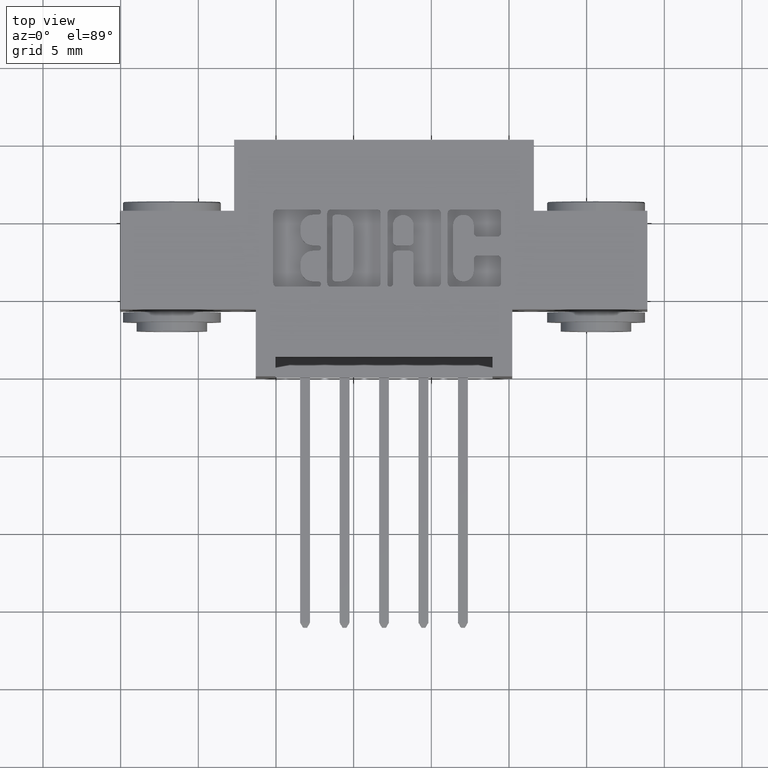
[diagram: clean part render]
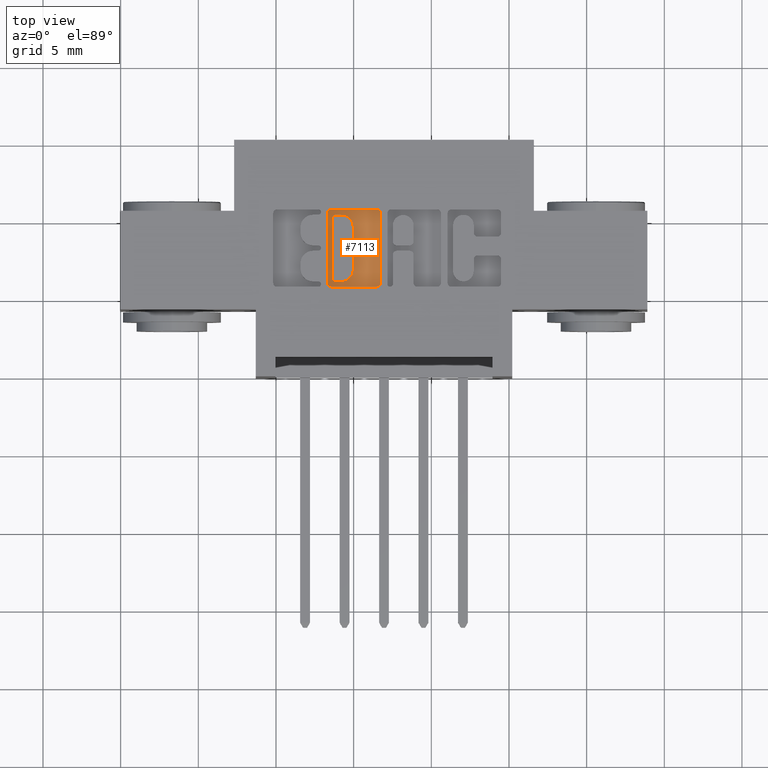
[diagram: same view with one face highlighted and labeled with its STEP entity id]
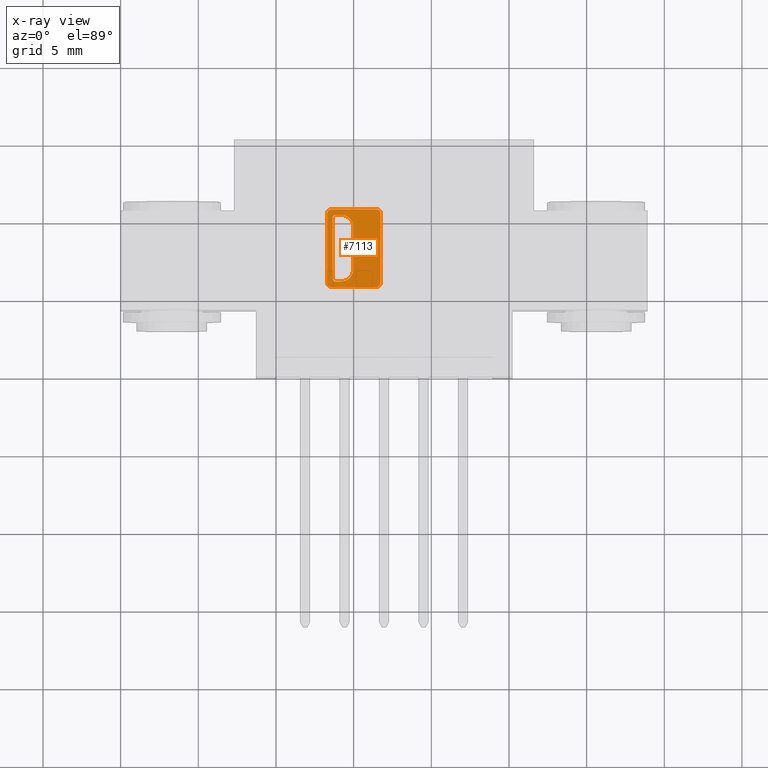
[diagram: x-ray of the same camera — body ghosted, the highlighted face saturated]
A machine part, top view. The second image highlights one B-rep face of the part: STEP entity #7113.
The next image is the same camera in x-ray: the body ghosted, the highlighted face saturated — about 0% of this face is hidden behind the body in this view.
In plain terms, the highlighted planar face has unit normal (0, 0, 1).
Its self-contained STEP definition (entity closure, byte-faithful):
#9 = DIRECTION ( 'NONE',  ( 1.000000000000000000, 0.0000000000000000000, 0.0000000000000000000 ) ) ;
#76 = CARTESIAN_POINT ( 'NONE',  ( 0.5583006689826732800, 0.2719953808994839400, -0.01000000000000000000 ) ) ;
#106 = ORIENTED_EDGE ( 'NONE', *, *, #1185, .F. ) ;
#218 = VERTEX_POINT ( 'NONE', #9119 ) ;
#222 = CARTESIAN_POINT ( 'NONE',  ( 0.5583006689826732800, 0.2405852362473136800, -0.01000000000000000000 ) ) ;
#296 = CARTESIAN_POINT ( 'NONE',  ( 0.0000000000000000000, 0.2268432979619826000, -0.01000000000000000000 ) ) ;
#318 = DIRECTION ( 'NONE',  ( 1.000000000000000000, 0.0000000000000000000, 0.0000000000000000000 ) ) ;
#339 = AXIS2_PLACEMENT_3D ( 'NONE', #5575, #2522, #318 ) ;
#357 = CIRCLE ( 'NONE', #8450, 0.006870969142663253800 ) ;
#408 = EDGE_CURVE ( 'NONE', #1511, #2340, #3292, .T. ) ;
#435 = LINE ( 'NONE', #4627, #542 ) ;
#542 = VECTOR ( 'NONE', #6032, 39.37007874015748100 ) ;
#567 = LINE ( 'NONE', #1394, #9237 ) ;
#598 = EDGE_CURVE ( 'NONE', #1737, #9183, #3509, .T. ) ;
#665 = DIRECTION ( 'NONE',  ( 0.0000000000000000000, 1.000000000000000000, -0.0000000000000000000 ) ) ;
#669 = DIRECTION ( 'NONE',  ( 1.000000000000000000, 0.0000000000000000000, 0.0000000000000000000 ) ) ;
#717 = CARTESIAN_POINT ( 'NONE',  ( 0.6589112885716688100, 0.0000000000000000000, -0.01000000000000000000 ) ) ;
#718 = CARTESIAN_POINT ( 'NONE',  ( 0.5583006689826716100, 0.3780046191005520000, -0.01000000000000000000 ) ) ;
#723 = VERTEX_POINT ( 'NONE', #4479 ) ;
#792 = DIRECTION ( 'NONE',  ( 0.0000000000000000000, -1.000000000000000000, 0.0000000000000000000 ) ) ;
#881 = FACE_OUTER_BOUND ( 'NONE', #3863, .T. ) ;
#887 = ORIENTED_EDGE ( 'NONE', *, *, #9249, .F. ) ;
#973 = CARTESIAN_POINT ( 'NONE',  ( 0.6490956183678618900, 0.2366589681657893500, -0.01000000000000000000 ) ) ;
#977 = ORIENTED_EDGE ( 'NONE', *, *, #5443, .T. ) ;
#978 = VERTEX_POINT ( 'NONE', #5259 ) ;
#1150 = CARTESIAN_POINT ( 'NONE',  ( 0.5583006689826778300, 0.4094147637527239000, -0.01000000000000000000 ) ) ;
#1185 = EDGE_CURVE ( 'NONE', #1737, #218, #5331, .T. ) ;
#1187 = LINE ( 'NONE', #6022, #1748 ) ;
#1238 = DIRECTION ( 'NONE',  ( 1.000000000000000000, 0.0000000000000000000, 0.0000000000000000000 ) ) ;
#1250 = ORIENTED_EDGE ( 'NONE', *, *, #3544, .T. ) ;
#1254 = EDGE_CURVE ( 'NONE', #978, #1624, #1187, .T. ) ;
#1272 = DIRECTION ( 'NONE',  ( -0.0000000000000000000, 0.0000000000000000000, 1.000000000000000000 ) ) ;
#1338 = DIRECTION ( 'NONE',  ( 1.000000000000000000, 0.0000000000000000000, 0.0000000000000000000 ) ) ;
#1394 = CARTESIAN_POINT ( 'NONE',  ( 0.5371969780444986200, 0.0000000000000000000, -0.01000000000000000000 ) ) ;
#1501 = EDGE_CURVE ( 'NONE', #1511, #2894, #7983, .T. ) ;
#1511 = VERTEX_POINT ( 'NONE', #7282 ) ;
#1591 = CARTESIAN_POINT ( 'NONE',  ( 0.0000000000000000000, 0.4094147637527239000, -0.01000000000000000000 ) ) ;
#1594 = VECTOR ( 'NONE', #3243, 39.37007874015748100 ) ;
#1624 = VERTEX_POINT ( 'NONE', #3517 ) ;
#1737 = VERTEX_POINT ( 'NONE', #222 ) ;
#1748 = VECTOR ( 'NONE', #7520, 39.37007874015748100 ) ;
#2058 = VECTOR ( 'NONE', #8205, 39.37007874015748100 ) ;
#2122 = AXIS2_PLACEMENT_3D ( 'NONE', #76, #3822, #5356 ) ;
#2169 = ORIENTED_EDGE ( 'NONE', *, *, #7080, .T. ) ;
#2213 = DIRECTION ( 'NONE',  ( -0.0000000000000000000, 0.0000000000000000000, 1.000000000000000000 ) ) ;
#2224 = DIRECTION ( 'NONE',  ( -1.000000000000000000, 0.0000000000000000000, 0.0000000000000000000 ) ) ;
#2310 = LINE ( 'NONE', #5270, #9356 ) ;
#2340 = VERTEX_POINT ( 'NONE', #1150 ) ;
#2341 = AXIS2_PLACEMENT_3D ( 'NONE', #6464, #1272, #1238 ) ;
#2435 = DIRECTION ( 'NONE',  ( -0.0000000000000000000, 0.0000000000000000000, 1.000000000000000000 ) ) ;
#2522 = DIRECTION ( 'NONE',  ( -0.0000000000000000000, 0.0000000000000000000, 1.000000000000000000 ) ) ;
#2584 = EDGE_CURVE ( 'NONE', #6210, #2894, #567, .T. ) ;
#2631 = ORIENTED_EDGE ( 'NONE', *, *, #2967, .T. ) ;
#2634 = DIRECTION ( 'NONE',  ( -0.0000000000000000000, 0.0000000000000000000, 1.000000000000000000 ) ) ;
#2686 = CARTESIAN_POINT ( 'NONE',  ( 0.0000000000000000000, 0.2405852362473136800, -0.01000000000000000000 ) ) ;
#2709 = ORIENTED_EDGE ( 'NONE', *, *, #598, .T. ) ;
#2719 = VERTEX_POINT ( 'NONE', #4999 ) ;
#2778 = CIRCLE ( 'NONE', #9429, 0.009815670203806754800 ) ;
#2894 = VERTEX_POINT ( 'NONE', #4850 ) ;
#2899 = DIRECTION ( 'NONE',  ( -0.0000000000000000000, 0.0000000000000000000, 1.000000000000000000 ) ) ;
#2967 = EDGE_CURVE ( 'NONE', #2719, #8622, #2778, .T. ) ;
#2997 = CARTESIAN_POINT ( 'NONE',  ( 0.5440679471871618900, 0.2405852362473136800, -0.01000000000000000000 ) ) ;
#3209 = FACE_BOUND ( 'NONE', #7898, .T. ) ;
#3243 = DIRECTION ( 'NONE',  ( 1.000000000000000000, 0.0000000000000000000, 0.0000000000000000000 ) ) ;
#3261 = CARTESIAN_POINT ( 'NONE',  ( 0.5371969780444986200, 0.2474562053899769000, -0.01000000000000000000 ) ) ;
#3283 = AXIS2_PLACEMENT_3D ( 'NONE', #973, #2435, #6940 ) ;
#3292 = LINE ( 'NONE', #1591, #8489 ) ;
#3439 = EDGE_CURVE ( 'NONE', #6210, #9183, #357, .T. ) ;
#3509 = LINE ( 'NONE', #2686, #3847 ) ;
#3517 = CARTESIAN_POINT ( 'NONE',  ( 0.5332707099630099600, 0.4231567020380504500, -0.01000000000000000000 ) ) ;
#3544 = EDGE_CURVE ( 'NONE', #7544, #978, #9482, .T. ) ;
#3618 = CARTESIAN_POINT ( 'NONE',  ( 0.5440679471871663300, 0.4025437946100561800, -0.01000000000000000000 ) ) ;
#3822 = DIRECTION ( 'NONE',  ( -0.0000000000000000000, 0.0000000000000000000, 1.000000000000000000 ) ) ;
#3847 = VECTOR ( 'NONE', #2224, 39.37007874015748100 ) ;
#3863 = EDGE_LOOP ( 'NONE', ( #977, #1250, #3956, #6260, #5789, #2631, #2169, #3984 ) ) ;
#3956 = ORIENTED_EDGE ( 'NONE', *, *, #1254, .T. ) ;
#3984 = ORIENTED_EDGE ( 'NONE', *, *, #7819, .T. ) ;
#4046 = PLANE ( 'NONE',  #8824 ) ;
#4134 = EDGE_CURVE ( 'NONE', #9278, #2719, #2310, .T. ) ;
#4409 = ORIENTED_EDGE ( 'NONE', *, *, #1501, .F. ) ;
#4463 = AXIS2_PLACEMENT_3D ( 'NONE', #3618, #7249, #1338 ) ;
#4479 = CARTESIAN_POINT ( 'NONE',  ( 0.6589112885716688100, 0.2366589681657893500, -0.01000000000000000000 ) ) ;
#4627 = CARTESIAN_POINT ( 'NONE',  ( 0.5897108136348435700, 0.0000000000000000000, -0.01000000000000000000 ) ) ;
#4764 = ORIENTED_EDGE ( 'NONE', *, *, #5602, .T. ) ;
#4850 = CARTESIAN_POINT ( 'NONE',  ( 0.5371969780444986200, 0.4025437946100561800, -0.01000000000000000000 ) ) ;
#4925 = VERTEX_POINT ( 'NONE', #6869 ) ;
#4999 = CARTESIAN_POINT ( 'NONE',  ( 0.5234550397591690700, 0.2366589681657893500, -0.01000000000000000000 ) ) ;
#5259 = CARTESIAN_POINT ( 'NONE',  ( 0.6490956183678959800, 0.4231567020380504500, -0.01000000000000000000 ) ) ;
#5270 = CARTESIAN_POINT ( 'NONE',  ( 0.5234550397591690700, 0.0000000000000000000, -0.01000000000000000000 ) ) ;
#5331 = CIRCLE ( 'NONE', #2122, 0.03141014465217023500 ) ;
#5343 = VERTEX_POINT ( 'NONE', #6324 ) ;
#5356 = DIRECTION ( 'NONE',  ( 1.000000000000000000, 0.0000000000000000000, 0.0000000000000000000 ) ) ;
#5443 = EDGE_CURVE ( 'NONE', #723, #7544, #6780, .T. ) ;
#5553 = AXIS2_PLACEMENT_3D ( 'NONE', #718, #2213, #7369 ) ;
#5575 = CARTESIAN_POINT ( 'NONE',  ( 0.6490956183678278100, 0.4133410318342093900, -0.01000000000000000000 ) ) ;
#5588 = DIRECTION ( 'NONE',  ( 1.000000000000000000, 0.0000000000000000000, 0.0000000000000000000 ) ) ;
#5602 = EDGE_CURVE ( 'NONE', #5343, #218, #435, .T. ) ;
#5789 = ORIENTED_EDGE ( 'NONE', *, *, #4134, .T. ) ;
#5859 = CARTESIAN_POINT ( 'NONE',  ( 0.6589112885716688100, 0.4133410318342095000, -0.01000000000000000000 ) ) ;
#6022 = CARTESIAN_POINT ( 'NONE',  ( 0.0000000000000000000, 0.4231567020380504500, -0.01000000000000000000 ) ) ;
#6032 = DIRECTION ( 'NONE',  ( 0.0000000000000000000, -1.000000000000000000, 0.0000000000000000000 ) ) ;
#6081 = DIRECTION ( 'NONE',  ( 1.000000000000000000, 0.0000000000000000000, 0.0000000000000000000 ) ) ;
#6210 = VERTEX_POINT ( 'NONE', #3261 ) ;
#6214 = DIRECTION ( 'NONE',  ( -0.0000000000000000000, 0.0000000000000000000, 1.000000000000000000 ) ) ;
#6260 = ORIENTED_EDGE ( 'NONE', *, *, #7166, .T. ) ;
#6281 = CIRCLE ( 'NONE', #3283, 0.009815670203806891800 ) ;
#6324 = CARTESIAN_POINT ( 'NONE',  ( 0.5897108136348435700, 0.3780046191005520000, -0.01000000000000000000 ) ) ;
#6464 = CARTESIAN_POINT ( 'NONE',  ( 0.5332707099630099600, 0.4133410318342095000, -0.01000000000000000000 ) ) ;
#6527 = CIRCLE ( 'NONE', #2341, 0.009815670203840902800 ) ;
#6545 = CARTESIAN_POINT ( 'NONE',  ( 0.5440679471871618900, 0.2474562053899769000, -0.01000000000000000000 ) ) ;
#6730 = ORIENTED_EDGE ( 'NONE', *, *, #3439, .F. ) ;
#6780 = LINE ( 'NONE', #717, #2058 ) ;
#6869 = CARTESIAN_POINT ( 'NONE',  ( 0.6490956183678618900, 0.2268432979619826000, -0.01000000000000000000 ) ) ;
#6940 = DIRECTION ( 'NONE',  ( 1.000000000000000000, 0.0000000000000000000, 0.0000000000000000000 ) ) ;
#7080 = EDGE_CURVE ( 'NONE', #8622, #4925, #9075, .T. ) ;
#7113 = ADVANCED_FACE ( 'NONE', ( #3209, #881 ), #4046, .T. ) ;
#7166 = EDGE_CURVE ( 'NONE', #1624, #9278, #6527, .T. ) ;
#7249 = DIRECTION ( 'NONE',  ( -0.0000000000000000000, 0.0000000000000000000, 1.000000000000000000 ) ) ;
#7282 = CARTESIAN_POINT ( 'NONE',  ( 0.5440679471871663300, 0.4094147637527239000, -0.01000000000000000000 ) ) ;
#7369 = DIRECTION ( 'NONE',  ( 1.000000000000000000, 0.0000000000000000000, 0.0000000000000000000 ) ) ;
#7520 = DIRECTION ( 'NONE',  ( -1.000000000000000000, 0.0000000000000000000, 0.0000000000000000000 ) ) ;
#7544 = VERTEX_POINT ( 'NONE', #5859 ) ;
#7705 = CARTESIAN_POINT ( 'NONE',  ( 0.0000000000000000000, 0.0000000000000000000, -0.01000000000000000000 ) ) ;
#7782 = ORIENTED_EDGE ( 'NONE', *, *, #2584, .T. ) ;
#7819 = EDGE_CURVE ( 'NONE', #4925, #723, #6281, .T. ) ;
#7898 = EDGE_LOOP ( 'NONE', ( #4409, #8420, #887, #4764, #106, #2709, #6730, #7782 ) ) ;
#7983 = CIRCLE ( 'NONE', #4463, 0.006870969142667761500 ) ;
#8205 = DIRECTION ( 'NONE',  ( 0.0000000000000000000, 1.000000000000000000, -0.0000000000000000000 ) ) ;
#8420 = ORIENTED_EDGE ( 'NONE', *, *, #408, .T. ) ;
#8450 = AXIS2_PLACEMENT_3D ( 'NONE', #6545, #2899, #9 ) ;
#8489 = VECTOR ( 'NONE', #6081, 39.37007874015748100 ) ;
#8514 = CARTESIAN_POINT ( 'NONE',  ( 0.5332707099629758800, 0.2366589681657893500, -0.01000000000000000000 ) ) ;
#8622 = VERTEX_POINT ( 'NONE', #9324 ) ;
#8755 = CIRCLE ( 'NONE', #5553, 0.03141014465217194900 ) ;
#8824 = AXIS2_PLACEMENT_3D ( 'NONE', #7705, #6214, #5588 ) ;
#9075 = LINE ( 'NONE', #296, #1594 ) ;
#9119 = CARTESIAN_POINT ( 'NONE',  ( 0.5897108136348435700, 0.2719953808994839400, -0.01000000000000000000 ) ) ;
#9183 = VERTEX_POINT ( 'NONE', #2997 ) ;
#9237 = VECTOR ( 'NONE', #665, 39.37007874015748100 ) ;
#9249 = EDGE_CURVE ( 'NONE', #5343, #2340, #8755, .T. ) ;
#9278 = VERTEX_POINT ( 'NONE', #9455 ) ;
#9324 = CARTESIAN_POINT ( 'NONE',  ( 0.5332707099629758800, 0.2268432979619826000, -0.01000000000000000000 ) ) ;
#9356 = VECTOR ( 'NONE', #792, 39.37007874015748100 ) ;
#9429 = AXIS2_PLACEMENT_3D ( 'NONE', #8514, #2634, #669 ) ;
#9455 = CARTESIAN_POINT ( 'NONE',  ( 0.5234550397591690700, 0.4133410318342095000, -0.01000000000000000000 ) ) ;
#9482 = CIRCLE ( 'NONE', #339, 0.009815670203841039800 ) ;